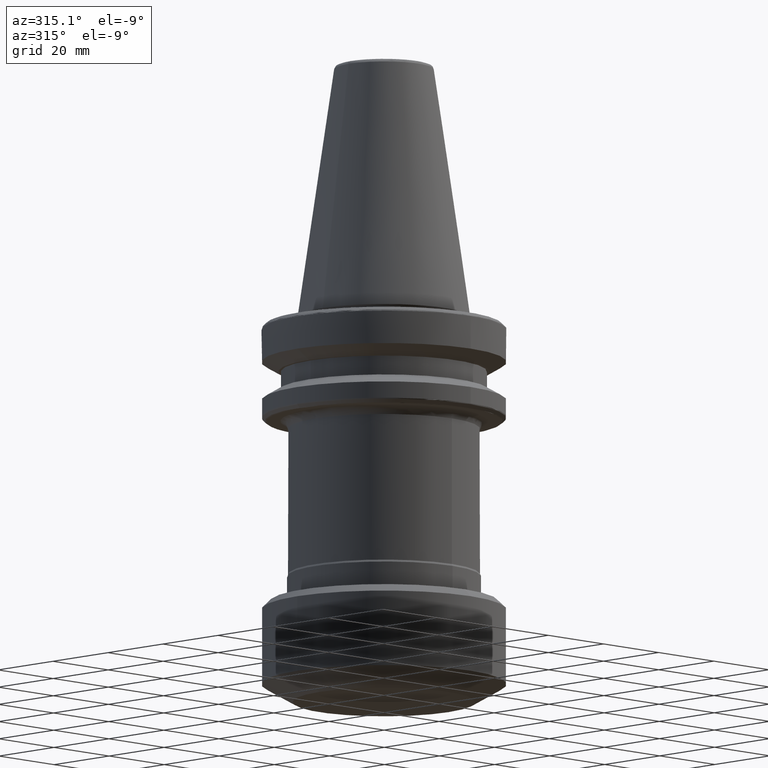
[diagram: clean part render]
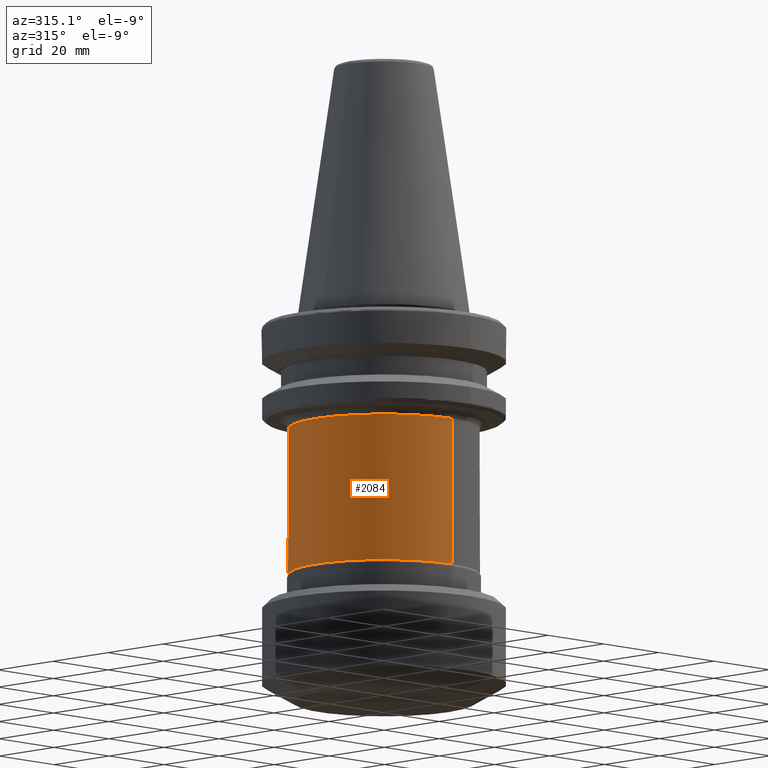
[diagram: same view with one face highlighted and labeled with its STEP entity id]
A machine part, auxiliary view. The second image highlights one B-rep face of the part: STEP entity #2084.
In plain terms, the highlighted cylindrical surface (partial cylindrical patch) has radius 24.7 mm, axis along (0, -0, 1).
Its self-contained STEP definition (entity closure, byte-faithful):
#73 = DIRECTION ( 'NONE',  ( 1.000000000000000000, 0.0000000000000000000, -1.404634393503487500E-016 ) ) ;
#74 = CIRCLE ( 'NONE', #873, 24.69999999999999900 ) ;
#80 = VERTEX_POINT ( 'NONE', #1704 ) ;
#92 = ORIENTED_EDGE ( 'NONE', *, *, #2751, .T. ) ;
#173 = CARTESIAN_POINT ( 'NONE',  ( 0.0000000000000000000, -24.70000000000001000, -28.99999999999999600 ) ) ;
#210 = CARTESIAN_POINT ( 'NONE',  ( 0.0000000000000000000, 0.0000000000000000000, -66.86387326999998500 ) ) ;
#297 = CIRCLE ( 'NONE', #3288, 24.69999999999999900 ) ;
#488 = DIRECTION ( 'NONE',  ( -1.000000000000000000, 0.0000000000000000000, -5.618537574013950100E-016 ) ) ;
#503 = DIRECTION ( 'NONE',  ( 0.0000000000000000000, 0.0000000000000000000, 1.000000000000000000 ) ) ;
#523 = CARTESIAN_POINT ( 'NONE',  ( 3.024877593893962600E-015, 24.69999999999999900, -66.86387326999998500 ) ) ;
#530 = AXIS2_PLACEMENT_3D ( 'NONE', #3296, #1695, #73 ) ;
#632 = CARTESIAN_POINT ( 'NONE',  ( 0.0000000000000000000, -24.69999999999999900, -66.86387327000001300 ) ) ;
#741 = CARTESIAN_POINT ( 'NONE',  ( 0.0000000000000000000, 0.0000000000000000000, -66.86387326999999900 ) ) ;
#762 = EDGE_CURVE ( 'NONE', #80, #968, #74, .T. ) ;
#764 = CIRCLE ( 'NONE', #530, 24.69999999999999900 ) ;
#802 = EDGE_LOOP ( 'NONE', ( #2602, #3138, #92, #1859, #1606 ) ) ;
#805 = FACE_OUTER_BOUND ( 'NONE', #802, .T. ) ;
#873 = AXIS2_PLACEMENT_3D ( 'NONE', #210, #2097, #488 ) ;
#895 = DIRECTION ( 'NONE',  ( 0.0000000000000000000, -2.809268787006976000E-016, 1.000000000000000000 ) ) ;
#968 = VERTEX_POINT ( 'NONE', #1274 ) ;
#1061 = DIRECTION ( 'NONE',  ( 0.0000000000000000000, -2.809268787006976000E-016, 1.000000000000000000 ) ) ;
#1274 = CARTESIAN_POINT ( 'NONE',  ( 0.0000000000000000000, -24.69999999999999900, -66.86387326999998500 ) ) ;
#1304 = DIRECTION ( 'NONE',  ( 0.0000000000000000000, -1.000000000000000000, -5.618537574013950100E-016 ) ) ;
#1344 = VERTEX_POINT ( 'NONE', #2311 ) ;
#1350 = LINE ( 'NONE', #523, #2238 ) ;
#1475 = LINE ( 'NONE', #632, #2077 ) ;
#1606 = ORIENTED_EDGE ( 'NONE', *, *, #2512, .F. ) ;
#1695 = DIRECTION ( 'NONE',  ( 0.0000000000000000000, 0.0000000000000000000, 1.000000000000000000 ) ) ;
#1704 = CARTESIAN_POINT ( 'NONE',  ( 3.024877593893963400E-015, 24.69999999999999900, -66.86387326999998500 ) ) ;
#1859 = ORIENTED_EDGE ( 'NONE', *, *, #2623, .F. ) ;
#1933 = VERTEX_POINT ( 'NONE', #173 ) ;
#2077 = VECTOR ( 'NONE', #895, 1000.000000000000000 ) ;
#2084 = ADVANCED_FACE ( 'NONE', ( #805 ), #3474, .T. ) ;
#2097 = DIRECTION ( 'NONE',  ( -0.0000000000000000000, -0.0000000000000000000, 1.000000000000000000 ) ) ;
#2110 = EDGE_CURVE ( 'NONE', #80, #1344, #1350, .T. ) ;
#2118 = CARTESIAN_POINT ( 'NONE',  ( 0.0000000000000000000, 0.0000000000000000000, -28.99999999999999600 ) ) ;
#2175 = CARTESIAN_POINT ( 'NONE',  ( -24.69999999992037900, -7.599082026493020500E-009, -28.99999999972065700 ) ) ;
#2238 = VECTOR ( 'NONE', #1061, 1000.000000000000000 ) ;
#2311 = CARTESIAN_POINT ( 'NONE',  ( 3.024877593893962600E-015, 24.69999999999998900, -28.99999999999999600 ) ) ;
#2386 = DIRECTION ( 'NONE',  ( 1.000000000000000000, 0.0000000000000000000, -1.404634393503487500E-016 ) ) ;
#2512 = EDGE_CURVE ( 'NONE', #1344, #3433, #297, .T. ) ;
#2602 = ORIENTED_EDGE ( 'NONE', *, *, #2110, .F. ) ;
#2623 = EDGE_CURVE ( 'NONE', #3433, #1933, #764, .T. ) ;
#2652 = DIRECTION ( 'NONE',  ( 0.0000000000000000000, -2.809268787006976000E-016, 1.000000000000000000 ) ) ;
#2751 = EDGE_CURVE ( 'NONE', #968, #1933, #1475, .T. ) ;
#2812 = AXIS2_PLACEMENT_3D ( 'NONE', #741, #2652, #1304 ) ;
#3138 = ORIENTED_EDGE ( 'NONE', *, *, #762, .T. ) ;
#3288 = AXIS2_PLACEMENT_3D ( 'NONE', #2118, #503, #2386 ) ;
#3296 = CARTESIAN_POINT ( 'NONE',  ( 0.0000000000000000000, 0.0000000000000000000, -28.99999999999999600 ) ) ;
#3433 = VERTEX_POINT ( 'NONE', #2175 ) ;
#3474 = CYLINDRICAL_SURFACE ( 'NONE', #2812, 24.69999999999999900 ) ;